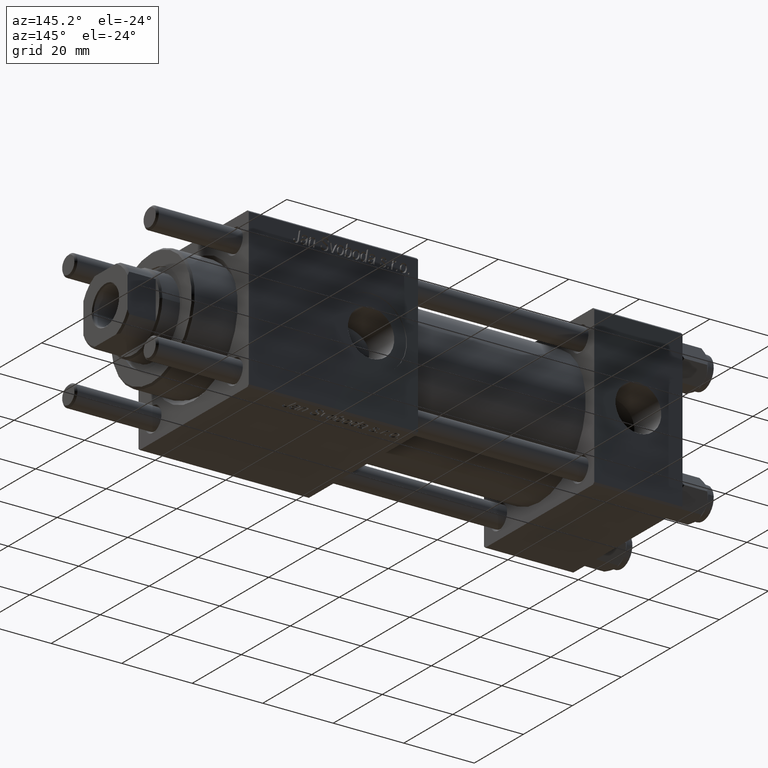
[diagram: clean part render]
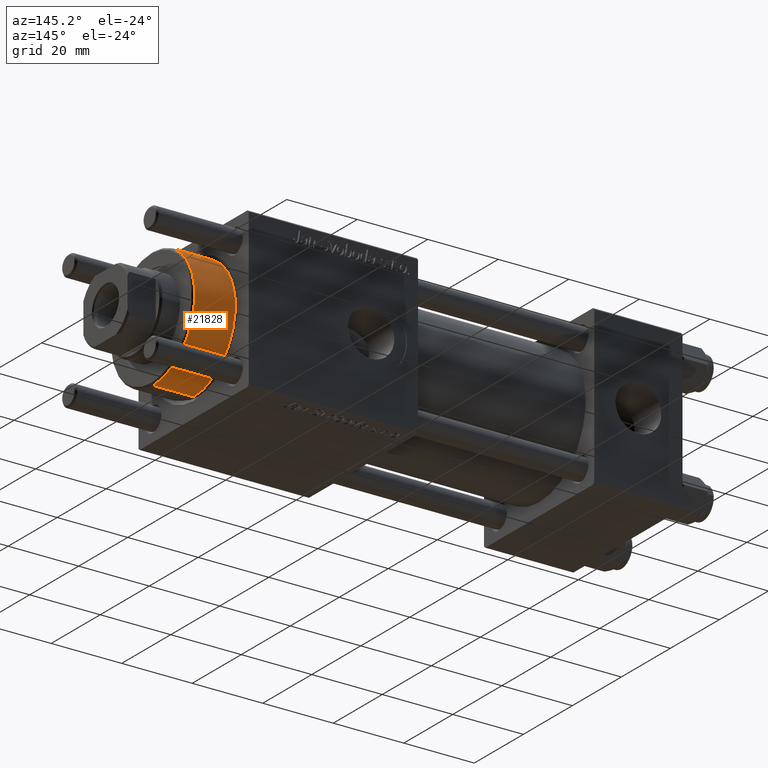
[diagram: same view with one face highlighted and labeled with its STEP entity id]
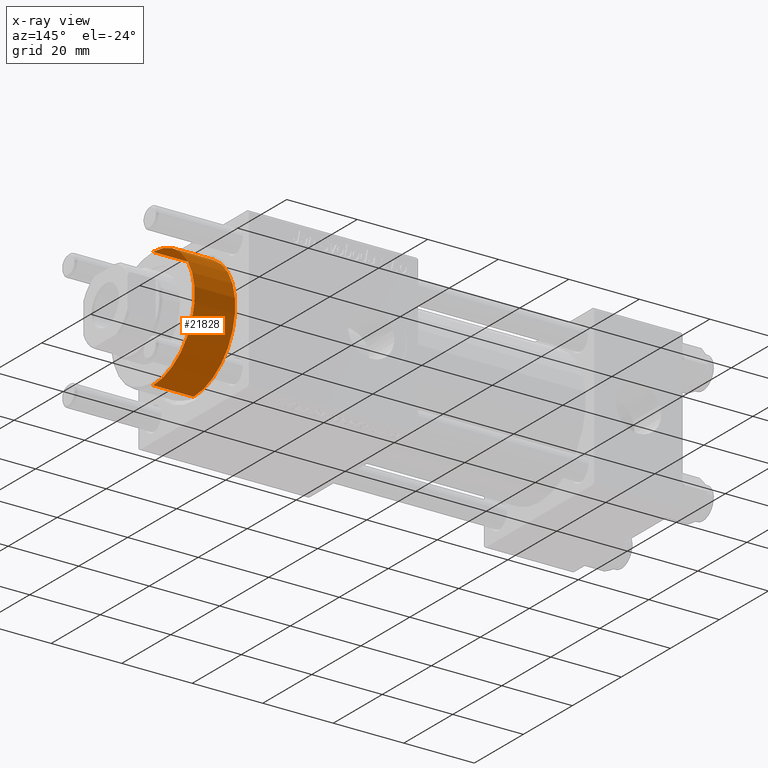
[diagram: x-ray of the same camera — body ghosted, the highlighted face saturated]
A machine part, auxiliary view. The second image highlights one B-rep face of the part: STEP entity #21828.
The next image is the same camera in x-ray: the body ghosted, the highlighted face saturated — about 0% of this face is hidden behind the body in this view.
In plain terms, the highlighted cylindrical surface (partial cylindrical patch) has radius 17 mm, axis along (-1, -0, 0).
Its self-contained STEP definition (entity closure, byte-faithful):
#850 = EDGE_CURVE ( 'NONE', #43132, #25528, #25797, .T. ) ;
#1318 = DIRECTION ( 'NONE',  ( -0.000000000000000000, -0.000000000000000000, -1.000000000000000000 ) ) ;
#1637 = ORIENTED_EDGE ( 'NONE', *, *, #52639, .F. ) ;
#2804 = CIRCLE ( 'NONE', #21162, 17.00000000000000000 ) ;
#4817 = DIRECTION ( 'NONE',  ( -0.000000000000000000, -0.000000000000000000, -1.000000000000000000 ) ) ;
#5887 = CARTESIAN_POINT ( 'NONE',  ( 0.000000000000000000, 0.000000000000000000, 40.70000000000000284 ) ) ;
#8806 = EDGE_CURVE ( 'NONE', #18679, #35501, #2804, .T. ) ;
#10183 = DIRECTION ( 'NONE',  ( -0.000000000000000000, -0.000000000000000000, -1.000000000000000000 ) ) ;
#11302 = DIRECTION ( 'NONE',  ( 0.000000000000000000, 0.000000000000000000, -1.000000000000000000 ) ) ;
#11692 = ORIENTED_EDGE ( 'NONE', *, *, #850, .T. ) ;
#15215 = VECTOR ( 'NONE', #1318, 1000.000000000000000 ) ;
#16771 = DIRECTION ( 'NONE',  ( 0.000000000000000000, 0.000000000000000000, 1.000000000000000000 ) ) ;
#17677 = CARTESIAN_POINT ( 'NONE',  ( -17.00000000000000000, 0.000000000000000000, 40.70000000000000284 ) ) ;
#18679 = VERTEX_POINT ( 'NONE', #46490 ) ;
#21162 = AXIS2_PLACEMENT_3D ( 'NONE', #54971, #11302, #46356 ) ;
#21828 = ADVANCED_FACE ( 'NONE', ( #54424 ), #44945, .T. ) ;
#22131 = EDGE_CURVE ( 'NONE', #35501, #43132, #44168, .T. ) ;
#22530 = DIRECTION ( 'NONE',  ( -1.000000000000000000, 0.000000000000000000, 0.000000000000000000 ) ) ;
#23559 = CARTESIAN_POINT ( 'NONE',  ( -17.00000000000000000, 0.000000000000000000, 28.69999999999999929 ) ) ;
#25528 = VERTEX_POINT ( 'NONE', #23559 ) ;
#25797 = CIRCLE ( 'NONE', #31343, 17.00000000000000000 ) ;
#27311 = CARTESIAN_POINT ( 'NONE',  ( 17.00000000000000000, 2.081899558550500280E-15, 40.19999999999999574 ) ) ;
#29767 = ORIENTED_EDGE ( 'NONE', *, *, #8806, .T. ) ;
#31343 = AXIS2_PLACEMENT_3D ( 'NONE', #52675, #16771, #34300 ) ;
#34300 = DIRECTION ( 'NONE',  ( 1.000000000000000000, 0.000000000000000000, 0.000000000000000000 ) ) ;
#35501 = VERTEX_POINT ( 'NONE', #27311 ) ;
#38171 = ORIENTED_EDGE ( 'NONE', *, *, #22131, .T. ) ;
#38824 = AXIS2_PLACEMENT_3D ( 'NONE', #5887, #10183, #22530 ) ;
#43132 = VERTEX_POINT ( 'NONE', #55901 ) ;
#44168 = LINE ( 'NONE', #52500, #50742 ) ;
#44945 = CYLINDRICAL_SURFACE ( 'NONE', #38824, 17.00000000000000000 ) ;
#46356 = DIRECTION ( 'NONE',  ( 1.000000000000000000, 0.000000000000000000, 0.000000000000000000 ) ) ;
#46490 = CARTESIAN_POINT ( 'NONE',  ( -17.00000000000000000, 0.000000000000000000, 40.19999999999999574 ) ) ;
#48433 = EDGE_LOOP ( 'NONE', ( #29767, #38171, #11692, #1637 ) ) ;
#50742 = VECTOR ( 'NONE', #4817, 1000.000000000000000 ) ;
#52500 = CARTESIAN_POINT ( 'NONE',  ( 17.00000000000000000, 2.081899558550500280E-15, 40.70000000000000284 ) ) ;
#52639 = EDGE_CURVE ( 'NONE', #18679, #25528, #52744, .T. ) ;
#52675 = CARTESIAN_POINT ( 'NONE',  ( 0.000000000000000000, 0.000000000000000000, 28.69999999999999929 ) ) ;
#52744 = LINE ( 'NONE', #17677, #15215 ) ;
#54424 = FACE_OUTER_BOUND ( 'NONE', #48433, .T. ) ;
#54971 = CARTESIAN_POINT ( 'NONE',  ( 0.000000000000000000, 0.000000000000000000, 40.19999999999999574 ) ) ;
#55901 = CARTESIAN_POINT ( 'NONE',  ( 17.00000000000000000, 2.081899558550500280E-15, 28.69999999999999929 ) ) ;